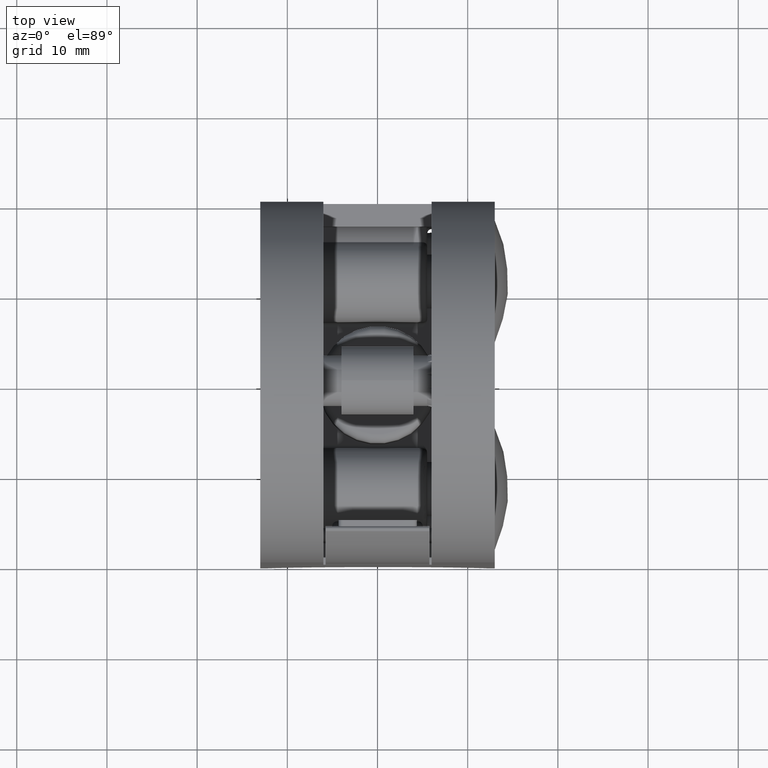
[diagram: clean part render]
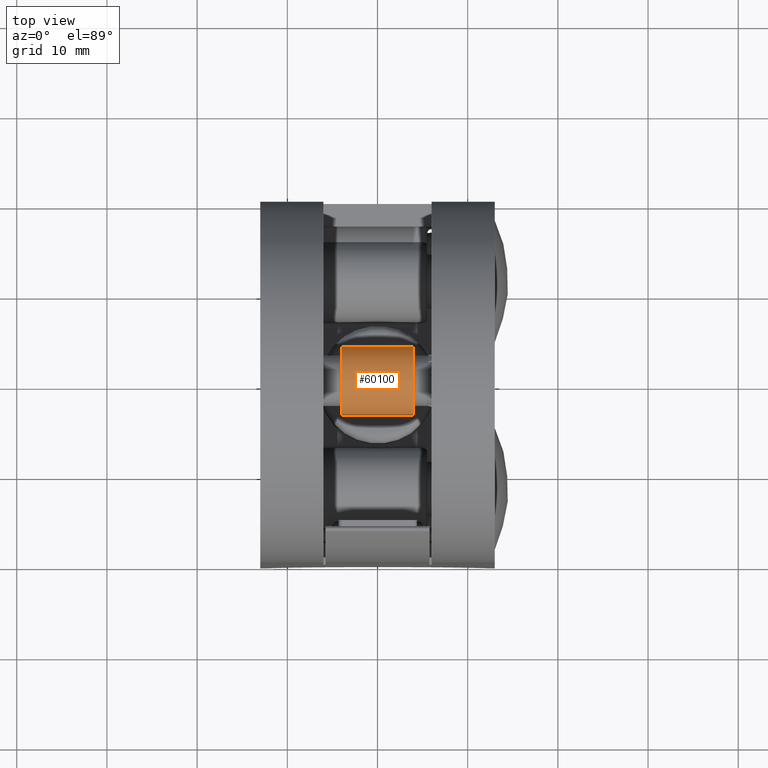
[diagram: same view with one face highlighted and labeled with its STEP entity id]
A machine part, top view. The second image highlights one B-rep face of the part: STEP entity #60100.
In plain terms, the highlighted cylindrical surface (bore or boss wall) has radius 3.8 mm, axis along (1, 0, -0).
Its self-contained STEP definition (entity closure, byte-faithful):
#1574 = CARTESIAN_POINT ( 'NONE',  ( 3.799999999999999822, 0.000000000000000000, 8.000000000000000000 ) ) ;
#2075 = EDGE_CURVE ( 'NONE', #13811, #13811, #62770, .T. ) ;
#7714 = EDGE_LOOP ( 'NONE', ( #36629 ) ) ;
#13811 = VERTEX_POINT ( 'NONE', #1574 ) ;
#15687 = ORIENTED_EDGE ( 'NONE', *, *, #2075, .F. ) ;
#19464 = AXIS2_PLACEMENT_3D ( 'NONE', #44002, #38894, #66480 ) ;
#19781 = EDGE_LOOP ( 'NONE', ( #15687 ) ) ;
#21705 = CARTESIAN_POINT ( 'NONE',  ( 0.000000000000000000, 0.000000000000000000, 8.000000000000000000 ) ) ;
#25749 = DIRECTION ( 'NONE',  ( 0.000000000000000000, 0.000000000000000000, 1.000000000000000000 ) ) ;
#25904 = CYLINDRICAL_SURFACE ( 'NONE', #51891, 3.799999999999999822 ) ;
#30328 = DIRECTION ( 'NONE',  ( 1.000000000000000000, 0.000000000000000000, 0.000000000000000000 ) ) ;
#30870 = CIRCLE ( 'NONE', #19464, 3.799999999999999822 ) ;
#32327 = DIRECTION ( 'NONE',  ( -0.000000000000000000, -0.000000000000000000, -1.000000000000000000 ) ) ;
#36629 = ORIENTED_EDGE ( 'NONE', *, *, #44675, .T. ) ;
#38894 = DIRECTION ( 'NONE',  ( 0.000000000000000000, 0.000000000000000000, 1.000000000000000000 ) ) ;
#39745 = VERTEX_POINT ( 'NONE', #69537 ) ;
#41599 = FACE_OUTER_BOUND ( 'NONE', #7714, .T. ) ;
#44002 = CARTESIAN_POINT ( 'NONE',  ( 0.000000000000000000, 0.000000000000000000, 0.000000000000000000 ) ) ;
#44675 = EDGE_CURVE ( 'NONE', #39745, #39745, #30870, .T. ) ;
#51891 = AXIS2_PLACEMENT_3D ( 'NONE', #21705, #32327, #60164 ) ;
#59111 = CARTESIAN_POINT ( 'NONE',  ( 0.000000000000000000, 0.000000000000000000, 8.000000000000000000 ) ) ;
#59762 = FACE_OUTER_BOUND ( 'NONE', #19781, .T. ) ;
#60100 = ADVANCED_FACE ( 'NONE', ( #59762, #41599 ), #25904, .T. ) ;
#60164 = DIRECTION ( 'NONE',  ( -1.000000000000000000, 0.000000000000000000, 0.000000000000000000 ) ) ;
#60641 = AXIS2_PLACEMENT_3D ( 'NONE', #59111, #25749, #30328 ) ;
#62770 = CIRCLE ( 'NONE', #60641, 3.799999999999999822 ) ;
#66480 = DIRECTION ( 'NONE',  ( 1.000000000000000000, 0.000000000000000000, 0.000000000000000000 ) ) ;
#69537 = CARTESIAN_POINT ( 'NONE',  ( 3.799999999999999822, 0.000000000000000000, 0.000000000000000000 ) ) ;